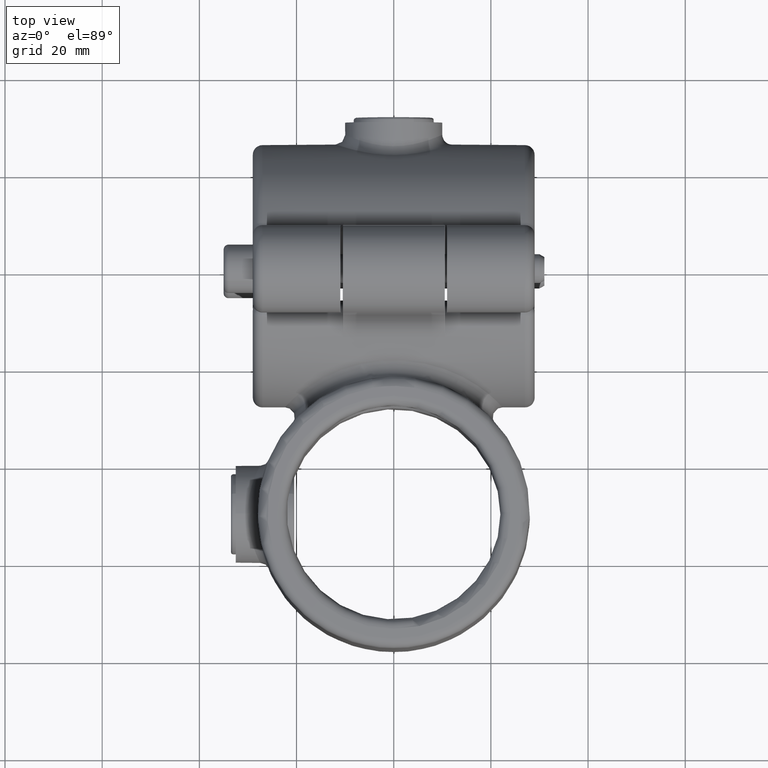
[diagram: clean part render]
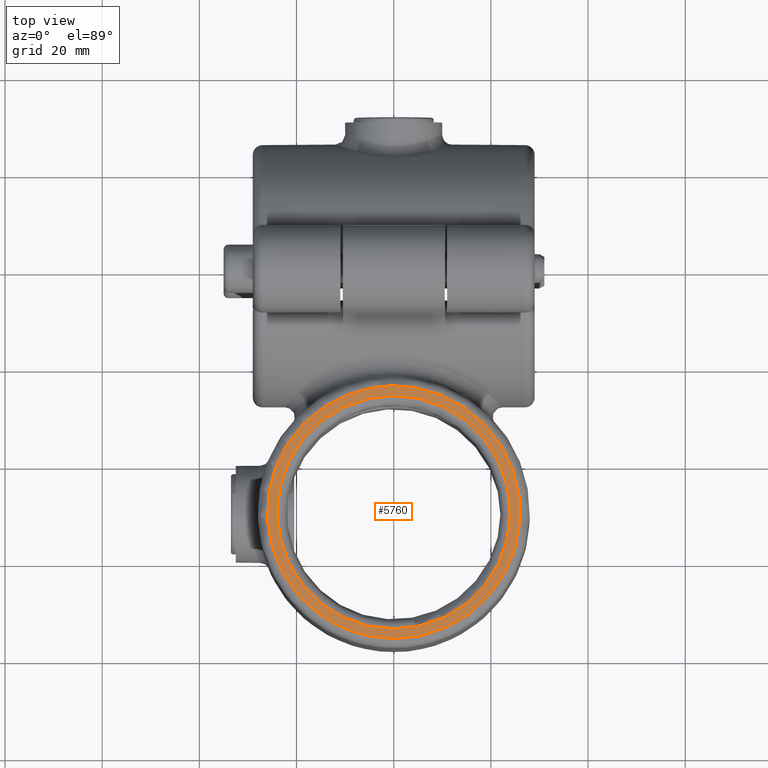
[diagram: same view with one face highlighted and labeled with its STEP entity id]
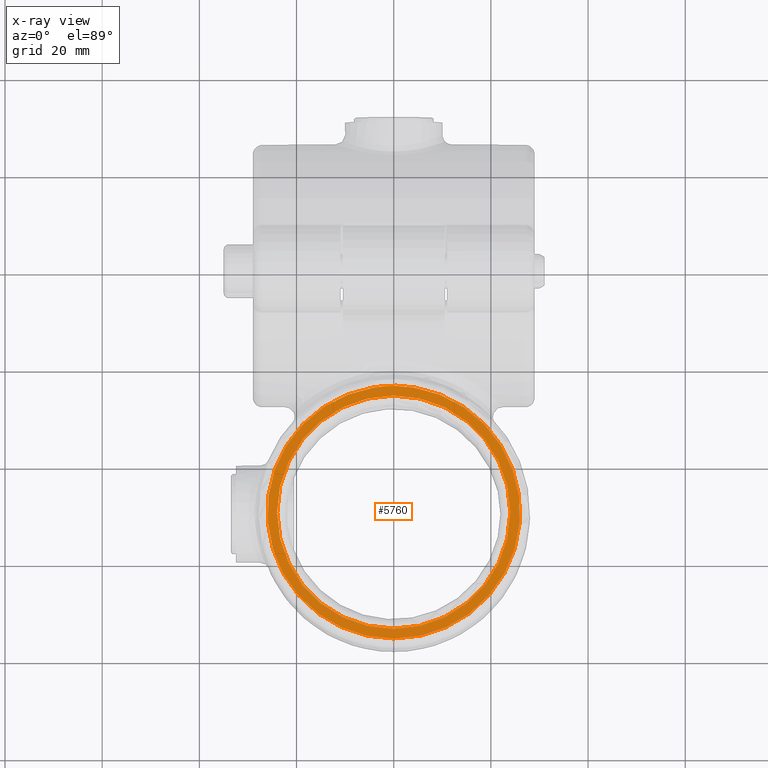
[diagram: x-ray of the same camera — body ghosted, the highlighted face saturated]
A machine part, top view. The second image highlights one B-rep face of the part: STEP entity #5760.
The next image is the same camera in x-ray: the body ghosted, the highlighted face saturated — about 0% of this face is hidden behind the body in this view.
In plain terms, the highlighted planar face has unit normal (0, 0, 1).
Its self-contained STEP definition (entity closure, byte-faithful):
#75 = VERTEX_POINT ( 'NONE', #7112 ) ;
#526 = VERTEX_POINT ( 'NONE', #7534 ) ;
#1422 = CIRCLE ( 'NONE', #3292, 24.00000000000000000 ) ;
#1482 = CARTESIAN_POINT ( 'NONE',  ( 2.807298818197570434, 35.88710833800345057, 24.00000000000000355 ) ) ;
#1539 = CARTESIAN_POINT ( 'NONE',  ( 4.210948227293986434, 35.65673235287474085, 24.00000000000000000 ) ) ;
#2075 = CARTESIAN_POINT ( 'NONE',  ( 4.702401662504129831E-12, 36.14548051409929741, 23.99999999999999645 ) ) ;
#2118 = PLANE ( 'NONE',  #3757 ) ;
#2143 = AXIS2_PLACEMENT_3D ( 'NONE', #3414, #5152, #3960 ) ;
#2335 = EDGE_CURVE ( 'NONE', #75, #526, #2481, .T. ) ;
#2481 = B_SPLINE_CURVE_WITH_KNOTS ( 'NONE', 3,
 ( #1539, #1482, #2075, #2687, #6800 ),
 .UNSPECIFIED., .F., .F.,
 ( 4, 1, 4 ),
 ( 0.000000000000000000, 0.004210948227289372167, 0.008421896454578744334 ),
 .UNSPECIFIED. ) ;
#2686 = EDGE_CURVE ( 'NONE', #6490, #6490, #1422, .T. ) ;
#2687 = CARTESIAN_POINT ( 'NONE',  ( -2.807298818188260103, 35.88710833800445954, 24.00000000000000711 ) ) ;
#2946 = EDGE_LOOP ( 'NONE', ( #3501 ) ) ;
#3158 = DIRECTION ( 'NONE',  ( -0.000000000000000000, -0.000000000000000000, -1.000000000000000000 ) ) ;
#3236 = CARTESIAN_POINT ( 'NONE',  ( 0.000000000000000000, 9.999999999999980460, 24.00000000000000000 ) ) ;
#3292 = AXIS2_PLACEMENT_3D ( 'NONE', #5511, #3158, #4939 ) ;
#3414 = CARTESIAN_POINT ( 'NONE',  ( 0.000000000000000000, 9.999999999999980460, 24.00000000000000000 ) ) ;
#3451 = ORIENTED_EDGE ( 'NONE', *, *, #2335, .T. ) ;
#3501 = ORIENTED_EDGE ( 'NONE', *, *, #2686, .T. ) ;
#3757 = AXIS2_PLACEMENT_3D ( 'NONE', #3236, #5008, #5589 ) ;
#3906 = CIRCLE ( 'NONE', #2143, 26.00000000000001066 ) ;
#3960 = DIRECTION ( 'NONE',  ( 1.000000000000000000, 0.000000000000000000, 0.000000000000000000 ) ) ;
#4211 = CARTESIAN_POINT ( 'NONE',  ( 24.00000000000000000, 9.999999999999980460, 24.00000000000000000 ) ) ;
#4753 = EDGE_CURVE ( 'NONE', #526, #75, #3906, .T. ) ;
#4939 = DIRECTION ( 'NONE',  ( 1.000000000000000000, 0.000000000000000000, 0.000000000000000000 ) ) ;
#4996 = FACE_OUTER_BOUND ( 'NONE', #7173, .T. ) ;
#5008 = DIRECTION ( 'NONE',  ( 0.000000000000000000, 0.000000000000000000, 1.000000000000000000 ) ) ;
#5152 = DIRECTION ( 'NONE',  ( 0.000000000000000000, 0.000000000000000000, 1.000000000000000000 ) ) ;
#5191 = FACE_BOUND ( 'NONE', #2946, .T. ) ;
#5511 = CARTESIAN_POINT ( 'NONE',  ( 0.000000000000000000, 9.999999999999980460, 24.00000000000000000 ) ) ;
#5539 = ORIENTED_EDGE ( 'NONE', *, *, #4753, .T. ) ;
#5589 = DIRECTION ( 'NONE',  ( 1.000000000000000000, 0.000000000000000000, -0.000000000000000000 ) ) ;
#5760 = ADVANCED_FACE ( 'NONE', ( #4996, #5191 ), #2118, .T. ) ;
#6490 = VERTEX_POINT ( 'NONE', #4211 ) ;
#6800 = CARTESIAN_POINT ( 'NONE',  ( -4.210948227284757373, 35.65673235287625431, 24.00000000000000000 ) ) ;
#7112 = CARTESIAN_POINT ( 'NONE',  ( 4.210948227293986434, 35.65673235287474085, 24.00000000000000000 ) ) ;
#7173 = EDGE_LOOP ( 'NONE', ( #5539, #3451 ) ) ;
#7534 = CARTESIAN_POINT ( 'NONE',  ( -4.210948227284757373, 35.65673235287625431, 24.00000000000000000 ) ) ;